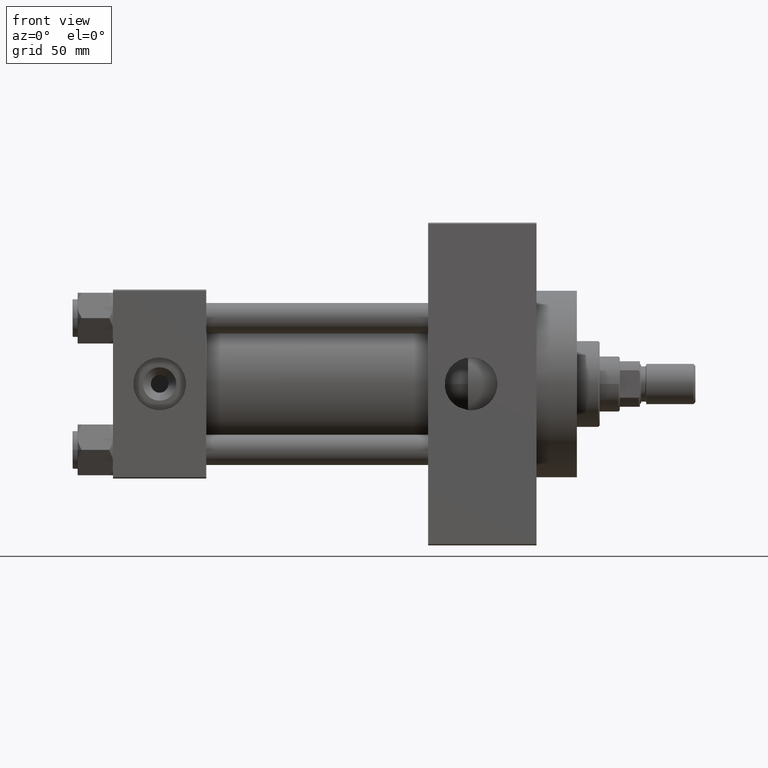
[diagram: clean part render]
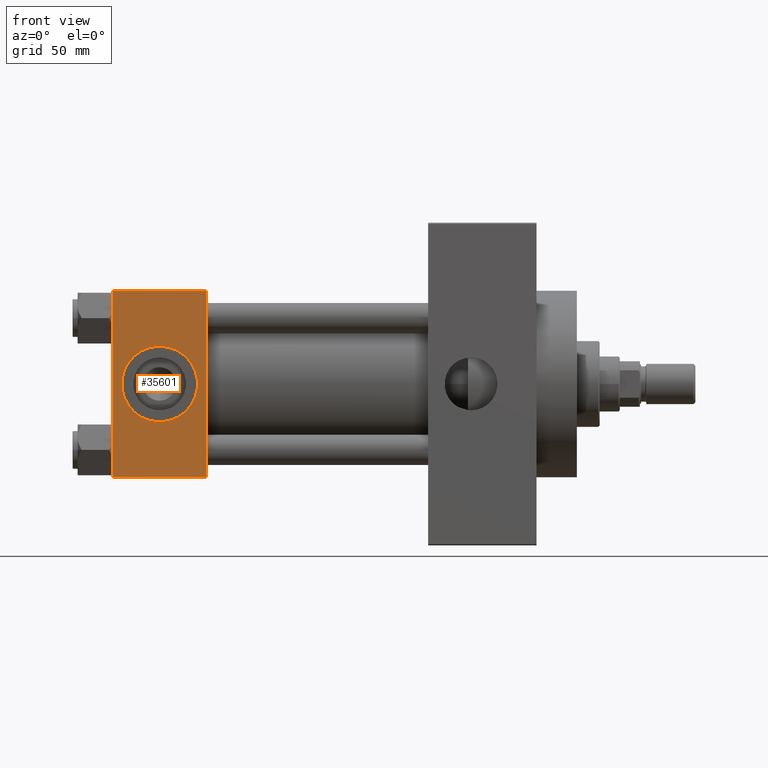
[diagram: same view with one face highlighted and labeled with its STEP entity id]
A machine part, front view. The second image highlights one B-rep face of the part: STEP entity #35601.
In plain terms, the highlighted planar face has unit normal (0, 1, 0).
Its self-contained STEP definition (entity closure, byte-faithful):
#113 = LINE ( 'NONE', #39451, #31475 ) ;
#340 = VERTEX_POINT ( 'NONE', #30567 ) ;
#935 = DIRECTION ( 'NONE',  ( -0.000000000000000000, 1.000000000000000000, 9.251858538542971581E-17 ) ) ;
#1018 = VECTOR ( 'NONE', #45852, 1000.000000000000000 ) ;
#2273 = EDGE_CURVE ( 'NONE', #24961, #48607, #24540, .T. ) ;
#3167 = VERTEX_POINT ( 'NONE', #48463 ) ;
#3888 = LINE ( 'NONE', #30893, #1018 ) ;
#5530 = CARTESIAN_POINT ( 'NONE',  ( 18.50000000000000355, -37.50000000000000711, 14.99999999999999822 ) ) ;
#6154 = CARTESIAN_POINT ( 'NONE',  ( 37.00000000000000000, -37.50000000000000711, 37.49999999999999289 ) ) ;
#7131 = VECTOR ( 'NONE', #40708, 1000.000000000000000 ) ;
#8139 = ORIENTED_EDGE ( 'NONE', *, *, #24599, .T. ) ;
#8734 = ORIENTED_EDGE ( 'NONE', *, *, #38359, .T. ) ;
#8820 = EDGE_CURVE ( 'NONE', #48607, #24961, #23125, .T. ) ;
#9873 = CARTESIAN_POINT ( 'NONE',  ( 37.00000000000000000, -37.50000000000000000, -37.00000000000003553 ) ) ;
#16443 = EDGE_CURVE ( 'NONE', #29000, #19463, #21295, .T. ) ;
#17201 = CARTESIAN_POINT ( 'NONE',  ( 37.00000000000000000, -37.50000000000000000, -37.00000000000003553 ) ) ;
#17639 = ORIENTED_EDGE ( 'NONE', *, *, #8820, .F. ) ;
#17691 = DIRECTION ( 'NONE',  ( 0.000000000000000000, -1.000000000000000000, -8.673617379884036705E-17 ) ) ;
#19463 = VERTEX_POINT ( 'NONE', #9873 ) ;
#19584 = EDGE_LOOP ( 'NONE', ( #17639, #23356 ) ) ;
#20120 = FACE_BOUND ( 'NONE', #19584, .T. ) ;
#20231 = DIRECTION ( 'NONE',  ( -1.000000000000000000, 0.000000000000000000, 0.000000000000000000 ) ) ;
#20948 = CARTESIAN_POINT ( 'NONE',  ( 37.00000000000000000, -37.50000000000000711, 36.99999999999999289 ) ) ;
#21244 = LINE ( 'NONE', #17201, #7131 ) ;
#21295 = LINE ( 'NONE', #6154, #44903 ) ;
#21555 = DIRECTION ( 'NONE',  ( 0.000000000000000000, 9.251858538542971581E-17, -1.000000000000000000 ) ) ;
#23125 = CIRCLE ( 'NONE', #46554, 15.00000000000000178 ) ;
#23356 = ORIENTED_EDGE ( 'NONE', *, *, #2273, .F. ) ;
#24540 = CIRCLE ( 'NONE', #42397, 15.00000000000000178 ) ;
#24599 = EDGE_CURVE ( 'NONE', #340, #19463, #21244, .T. ) ;
#24961 = VERTEX_POINT ( 'NONE', #5530 ) ;
#25268 = CARTESIAN_POINT ( 'NONE',  ( 18.50000000000000000, -37.50000000000000711, -3.469446951953614978E-15 ) ) ;
#29000 = VERTEX_POINT ( 'NONE', #20948 ) ;
#29054 = DIRECTION ( 'NONE',  ( 0.000000000000000000, 0.000000000000000000, -1.000000000000000000 ) ) ;
#30567 = CARTESIAN_POINT ( 'NONE',  ( 0.000000000000000000, -37.50000000000000000, -37.00000000000003553 ) ) ;
#30812 = DIRECTION ( 'NONE',  ( 0.000000000000000000, 0.000000000000000000, -1.000000000000000000 ) ) ;
#30893 = CARTESIAN_POINT ( 'NONE',  ( 0.000000000000000000, -37.50000000000000711, 37.49999999999999289 ) ) ;
#31475 = VECTOR ( 'NONE', #20231, 1000.000000000000000 ) ;
#31482 = PLANE ( 'NONE',  #45437 ) ;
#32878 = ORIENTED_EDGE ( 'NONE', *, *, #43967, .T. ) ;
#35120 = DIRECTION ( 'NONE',  ( 0.000000000000000000, -1.000000000000000000, -8.673617379884036705E-17 ) ) ;
#35601 = ADVANCED_FACE ( 'NONE', ( #20120, #39079 ), #31482, .F. ) ;
#38359 = EDGE_CURVE ( 'NONE', #29000, #3167, #113, .T. ) ;
#39079 = FACE_OUTER_BOUND ( 'NONE', #47471, .T. ) ;
#39451 = CARTESIAN_POINT ( 'NONE',  ( 37.00000000000000000, -37.50000000000000711, 36.99999999999999289 ) ) ;
#40689 = ORIENTED_EDGE ( 'NONE', *, *, #16443, .F. ) ;
#40708 = DIRECTION ( 'NONE',  ( 1.000000000000000000, 0.000000000000000000, 0.000000000000000000 ) ) ;
#42397 = AXIS2_PLACEMENT_3D ( 'NONE', #25268, #17691, #29054 ) ;
#42456 = CARTESIAN_POINT ( 'NONE',  ( 18.50000000000000000, -37.50000000000000711, -15.00000000000000533 ) ) ;
#42464 = CARTESIAN_POINT ( 'NONE',  ( 18.50000000000000000, -37.50000000000000711, -3.469446951953614978E-15 ) ) ;
#43967 = EDGE_CURVE ( 'NONE', #3167, #340, #3888, .T. ) ;
#44903 = VECTOR ( 'NONE', #21555, 1000.000000000000000 ) ;
#45437 = AXIS2_PLACEMENT_3D ( 'NONE', #46669, #935, #46922 ) ;
#45852 = DIRECTION ( 'NONE',  ( 0.000000000000000000, 9.251858538542971581E-17, -1.000000000000000000 ) ) ;
#46554 = AXIS2_PLACEMENT_3D ( 'NONE', #42464, #35120, #30812 ) ;
#46669 = CARTESIAN_POINT ( 'NONE',  ( 37.00000000000000000, -37.50000000000000711, 37.49999999999999289 ) ) ;
#46922 = DIRECTION ( 'NONE',  ( 0.000000000000000000, -9.251858538542971581E-17, 1.000000000000000000 ) ) ;
#47471 = EDGE_LOOP ( 'NONE', ( #32878, #8139, #40689, #8734 ) ) ;
#48463 = CARTESIAN_POINT ( 'NONE',  ( 0.000000000000000000, -37.50000000000000711, 36.99999999999999289 ) ) ;
#48607 = VERTEX_POINT ( 'NONE', #42456 ) ;